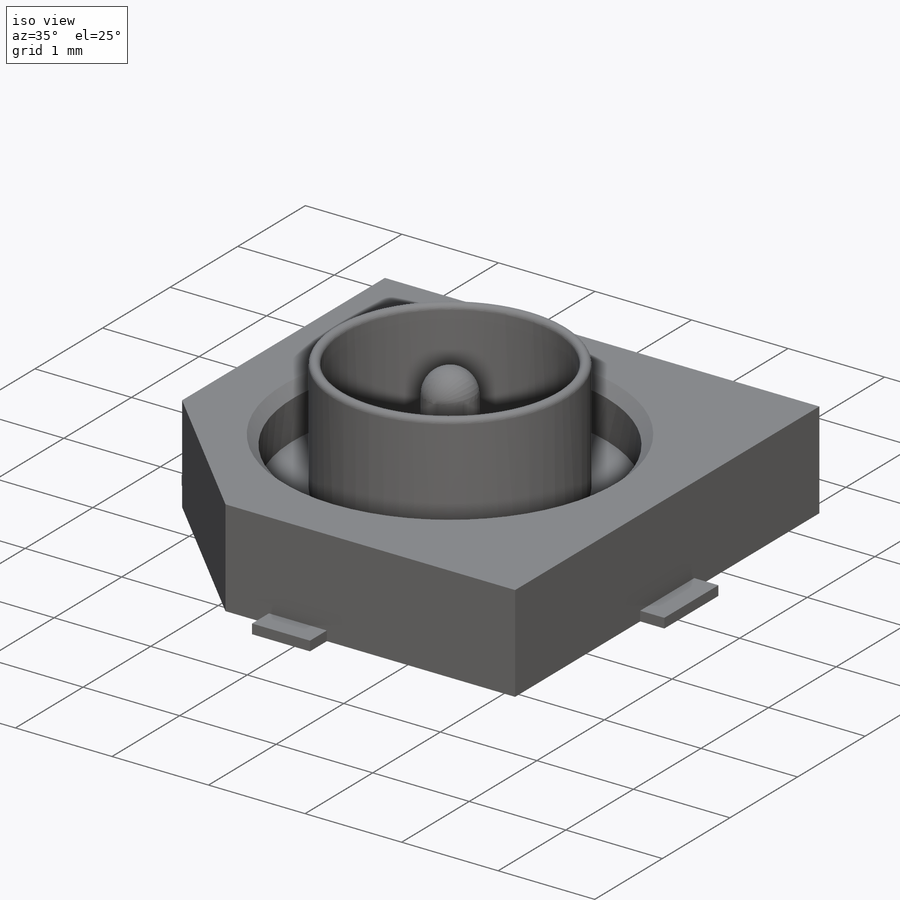
[diagram: iso view]
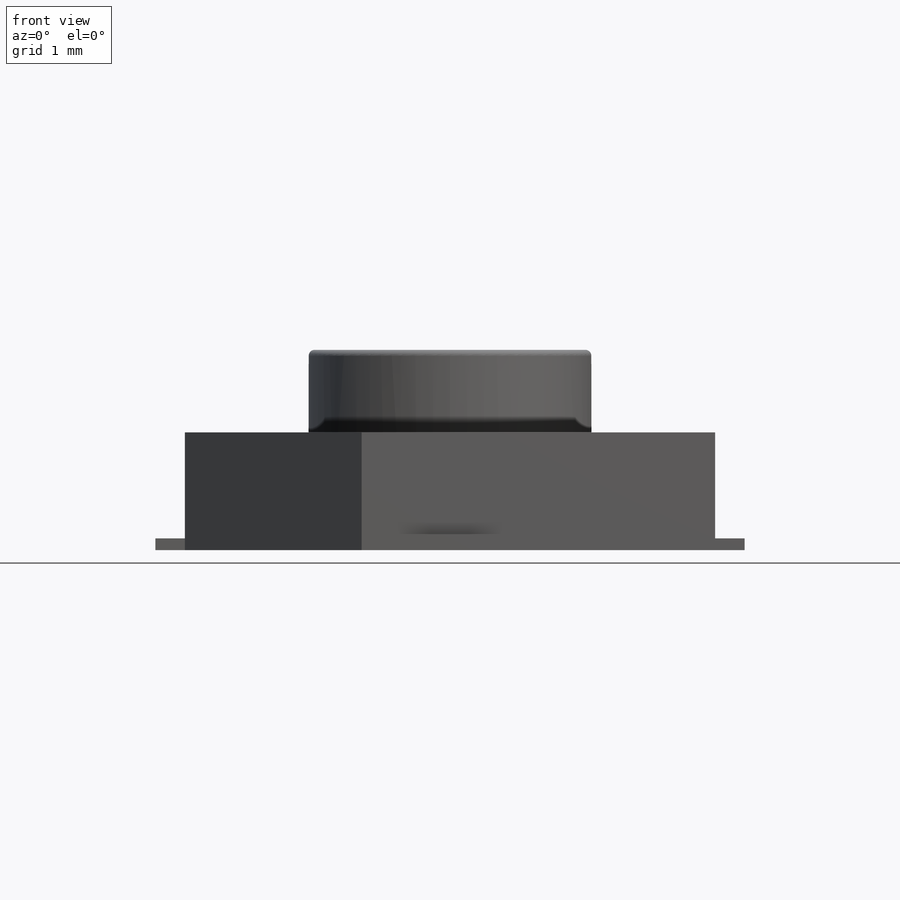
[diagram: front view]
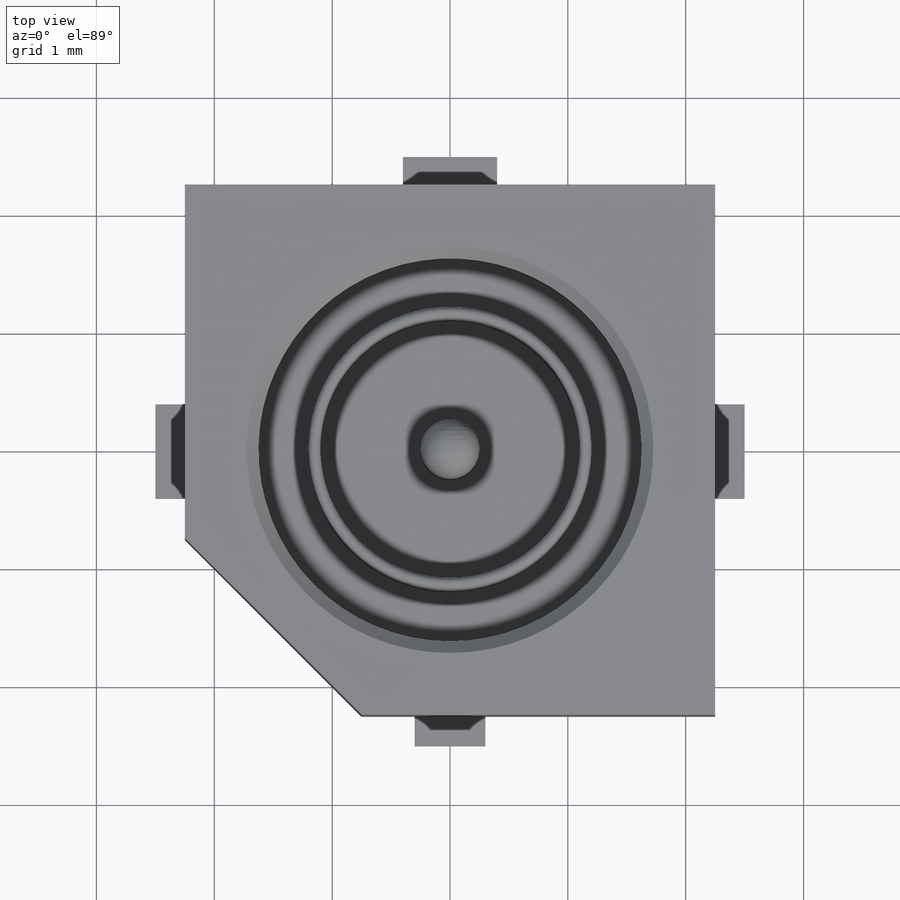
[diagram: top view]
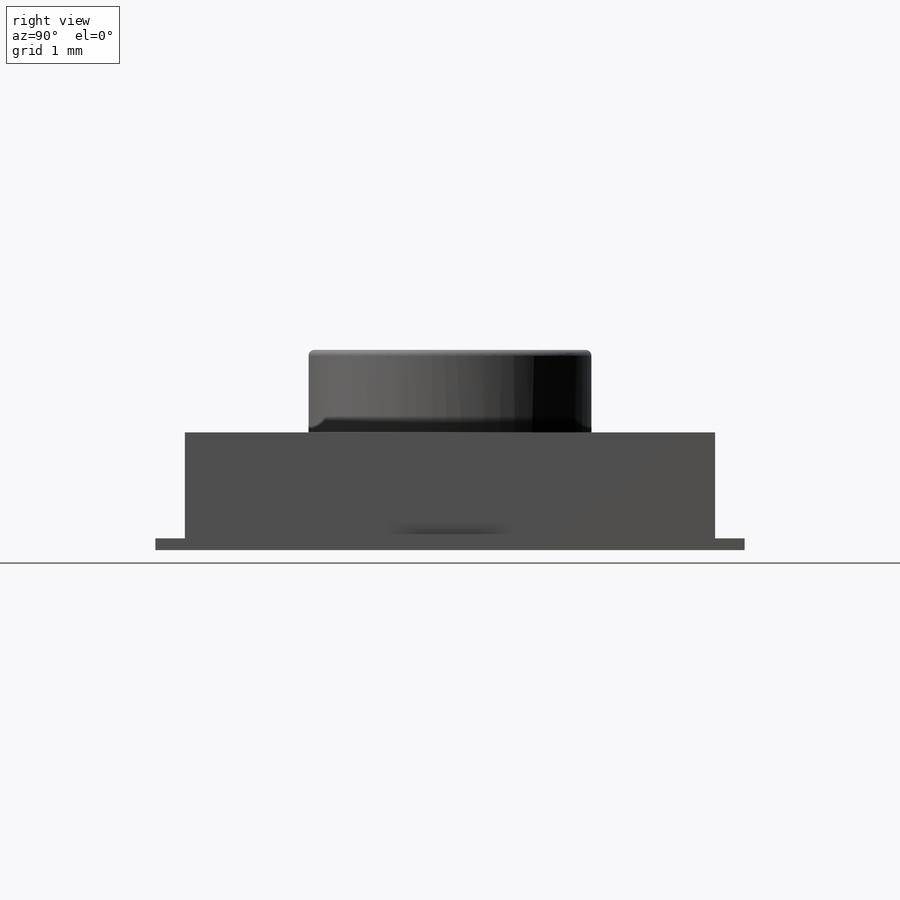
[diagram: right view]
SOLIDWORKS PART (.sldprt)
format: sldprt  version: not decoded by parser v0  size: 369,664 bytes
history: native  units: mm
features: sketch x5, extrude x4, plane x3, chamfer x2, material x1, cut_extrude x1, dome x1, fillet x1 + 2 further entries (+13 scaffold rows collapsed; 1 parser-record rows omitted)
feature tree (34):
  parser-record x1  (decoder bookkeeping rows leaked as tree rows — omitted from the tree; the rows remain in map.json)
  scaffold x13  (default folders/planes/origin — collapsed)
  material  "Material <not specified>"
  plane  "Plane1"
  plane  "Plane2"
  plane  "Plane3"
  "Axis2"
  "Axis3"
  sketch  "Sketch2"  dims[D1=4.5mm D2=5.0mm]
  extrude  "Extrude1"  Depth=1mm
  sketch  "Sketch3"  dims[D1=2.4mm D2=0.1mm]
  extrude  "Extrude2"  Depth=1.7mm
  sketch  "Sketch4"  dims[D1=0.5mm]
  extrude  "Extrude3"  Depth=1.375mm
  sketch  "Sketch5"  dims[D2=3.25mm D1=0.0mm]
  cut_extrude  "Extrude4"  Depth=0.5mm
  dome  "Dome1"
  fillet  "Fillet1"  [1 undecoded]
  chamfer  "Chamfer1"  Distance=0.1mm Angle=45deg
  sketch  "Sketch6"  dims[D1=5.0mm D2=0.8mm D3=5.0mm D4=0.8mm D5=0.6mm]
  extrude  "Extrude5"  Depth=0.1mm
  chamfer  "Chamfer2"  Distance=1.5mm Angle=45deg
decode coverage: 12 of 14 modeling features carry decoded parameters; 2 rows unclassified (native names shown)
note: 1 parameter value undecoded
note: suppression state not decoded; provenance and decode notes live in map.json
